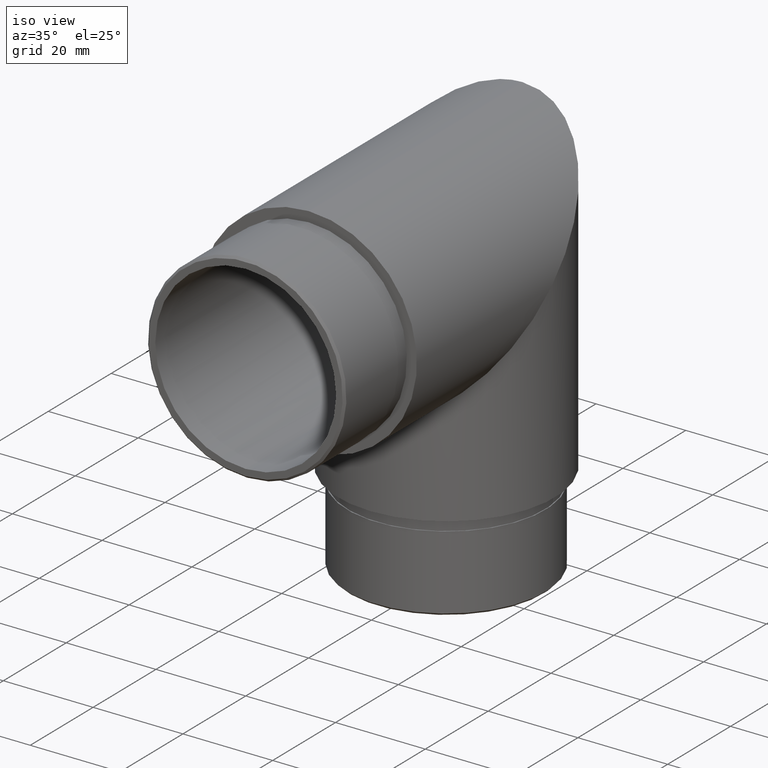
[diagram: clean part render]
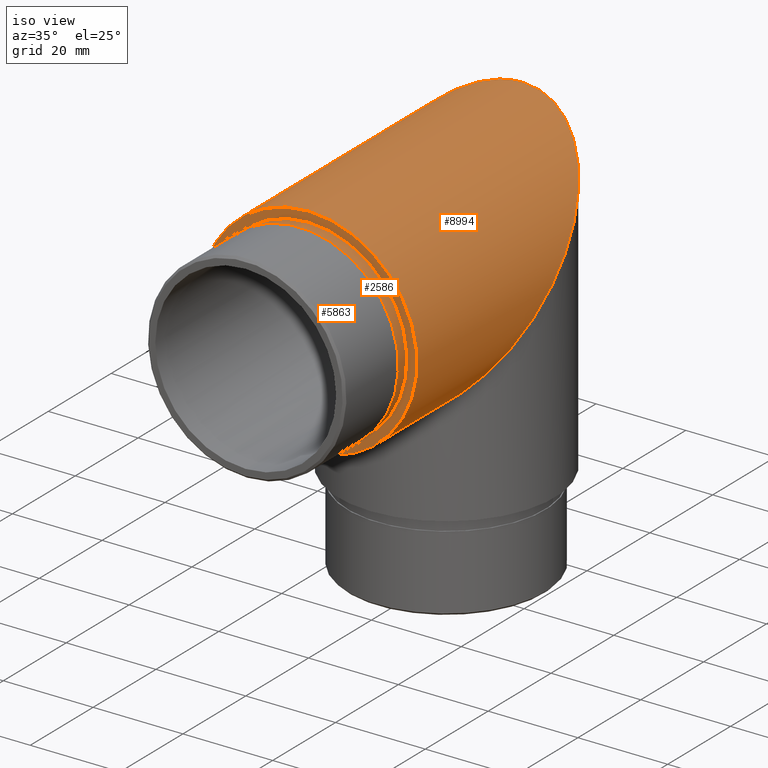
[diagram: same view with one multi-face feature highlighted, each face labeled with its STEP entity id]
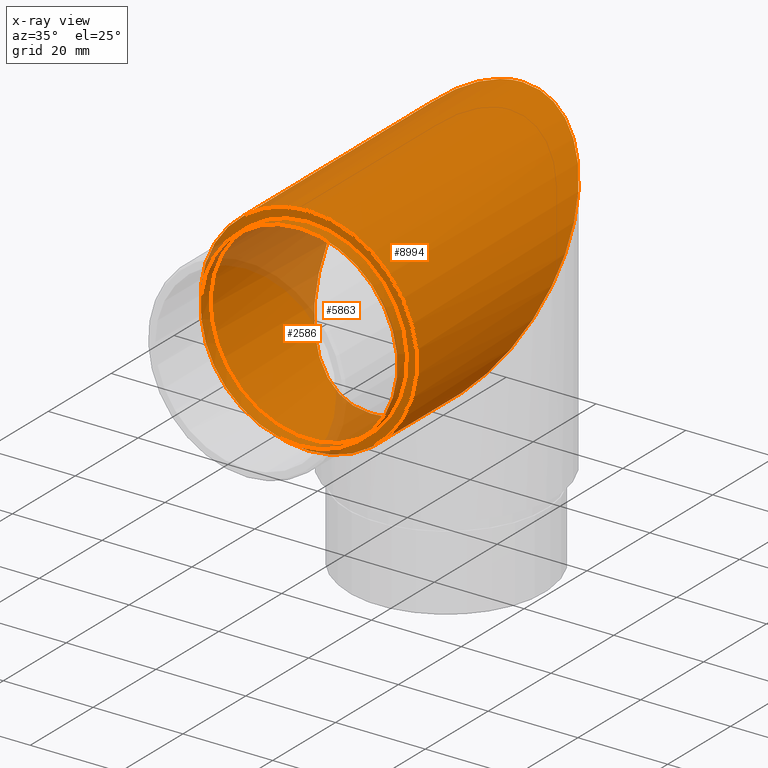
[diagram: x-ray of the same camera — body ghosted, the whole feature saturated]
A machine part, iso view. The highlighted faces form ONE feature: a stepped (counterbored) hole: 2 coaxial cylindrical walls of radii 21.9 -> 24.15 mm joined by 1 annular planar shoulder face(s). The faces share edges in the B-rep.
The next image is the same camera in x-ray: the body ghosted and the whole hole feature saturated, so the bore chain is visible through the body.
Their STEP definitions:
[1] entity #8994 (Cylinder):
#198 = CARTESIAN_POINT ( 'NONE',  ( 0.0000000000000000000, 19.69999999999990700, -24.15000000000000600 ) ) ;
#347 = CARTESIAN_POINT ( 'NONE',  ( 48.30000000000001100, 19.69999999999990700, -24.15000000000000900 ) ) ;
#1121 = CARTESIAN_POINT ( 'NONE',  ( 0.0000000000000000000, 19.69999999999990700, -24.15000000000000600 ) ) ;
#1145 = EDGE_LOOP ( 'NONE', ( #7351 ) ) ;
#1294 = DIRECTION ( 'NONE',  ( 0.0000000000000000000, 0.0000000000000000000, -1.000000000000000000 ) ) ;
#1626 = ORIENTED_EDGE ( 'NONE', *, *, #4614, .T. ) ;
#2707 = AXIS2_PLACEMENT_3D ( 'NONE', #3145, #9163, #10873 ) ;
#2925 = CARTESIAN_POINT ( 'NONE',  ( -2.957522019940858700E-015, 68.00000000000008500, 24.15000000000000600 ) ) ;
#3145 = CARTESIAN_POINT ( 'NONE',  ( 0.0000000000000000000, 0.0000000000000000000, 0.0000000000000000000 ) ) ;
#3412 = VERTEX_POINT ( 'NONE', #6307 ) ;
#4368 = FACE_OUTER_BOUND ( 'NONE', #10278, .T. ) ;
#4411 = EDGE_CURVE ( 'NONE', #10031, #10031, #8249, .T. ) ;
#4562 = CARTESIAN_POINT ( 'NONE',  ( -48.30000000000001100, 68.00000000000008500, 24.14999999999999900 ) ) ;
#4614 = EDGE_CURVE ( 'NONE', #3412, #3412, #7533, .T. ) ;
#5316 = CARTESIAN_POINT ( 'NONE',  ( 48.30000000000001100, 68.00000000000008500, 24.15000000000001600 ) ) ;
#5393 = CARTESIAN_POINT ( 'NONE',  ( 0.0000000000000000000, 19.69999999999990700, -24.15000000000000600 ) ) ;
#5468 = CARTESIAN_POINT ( 'NONE',  ( -48.30000000000001100, 19.69999999999990700, -24.15000000000000900 ) ) ;
#6280 = CYLINDRICAL_SURFACE ( 'NONE', #6342, 24.15000000000000600 ) ;
#6307 = CARTESIAN_POINT ( 'NONE',  ( 0.0000000000000000000, 0.0000000000000000000, 24.15000000000000600 ) ) ;
#6342 = AXIS2_PLACEMENT_3D ( 'NONE', #7401, #9139, #1294 ) ;
#7328 = FACE_OUTER_BOUND ( 'NONE', #1145, .T. ) ;
#7351 = ORIENTED_EDGE ( 'NONE', *, *, #4411, .F. ) ;
#7401 = CARTESIAN_POINT ( 'NONE',  ( 0.0000000000000000000, 112.1565150626205000, 0.0000000000000000000 ) ) ;
#7533 = CIRCLE ( 'NONE', #2707, 24.15000000000000600 ) ;
#8249 =( BOUNDED_CURVE ( )  B_SPLINE_CURVE ( 3, ( #5393, #5468, #4562, #2925, #5316, #347, #198 ),
 .UNSPECIFIED., .T., .T. ) 
 B_SPLINE_CURVE_WITH_KNOTS ( ( 4, 3, 4 ),
 ( 0.0000000000000000000, 3.141592653589793100, 6.283185307179586200 ),
 .UNSPECIFIED. ) 
 CURVE ( )  GEOMETRIC_REPRESENTATION_ITEM ( )  RATIONAL_B_SPLINE_CURVE ( ( 1.000000000000000000, 0.3333333333333333700, 0.3333333333333333700, 1.000000000000000000, 0.3333333333333333700, 0.3333333333333333700, 1.000000000000000000 ) ) 
 REPRESENTATION_ITEM ( '' )  );
#8994 = ADVANCED_FACE ( 'NONE', ( #4368, #7328 ), #6280, .T. ) ;
#9139 = DIRECTION ( 'NONE',  ( -0.0000000000000000000, -1.000000000000000000, -0.0000000000000000000 ) ) ;
#9163 = DIRECTION ( 'NONE',  ( 0.0000000000000000000, 1.000000000000000000, 0.0000000000000000000 ) ) ;
#10031 = VERTEX_POINT ( 'NONE', #1121 ) ;
#10278 = EDGE_LOOP ( 'NONE', ( #1626 ) ) ;
#10873 = DIRECTION ( 'NONE',  ( 0.0000000000000000000, 0.0000000000000000000, 1.000000000000000000 ) ) ;
[2] entity #2586 (Cylinder):
#311 = CIRCLE ( 'NONE', #5201, 21.90000000000000600 ) ;
#344 = VERTEX_POINT ( 'NONE', #1083 ) ;
#932 = AXIS2_PLACEMENT_3D ( 'NONE', #9952, #8192, #6566 ) ;
#1083 = CARTESIAN_POINT ( 'NONE',  ( 0.0000000000000000000, 0.0000000000000000000, 21.90000000000000600 ) ) ;
#1528 = CARTESIAN_POINT ( 'NONE',  ( 0.0000000000000000000, -3.000000000000000000, 0.0000000000000000000 ) ) ;
#2267 = DIRECTION ( 'NONE',  ( 0.0000000000000000000, 0.0000000000000000000, 1.000000000000000000 ) ) ;
#2586 = ADVANCED_FACE ( 'NONE', ( #3246, #8066 ), #2722, .T. ) ;
#2722 = CYLINDRICAL_SURFACE ( 'NONE', #9333, 21.90000000000000600 ) ;
#2933 = EDGE_CURVE ( 'NONE', #6673, #6673, #311, .T. ) ;
#3246 = FACE_OUTER_BOUND ( 'NONE', #8036, .T. ) ;
#3608 = ORIENTED_EDGE ( 'NONE', *, *, #2933, .F. ) ;
#4974 = EDGE_CURVE ( 'NONE', #344, #344, #10368, .T. ) ;
#5201 = AXIS2_PLACEMENT_3D ( 'NONE', #9705, #7200, #10620 ) ;
#5453 = CARTESIAN_POINT ( 'NONE',  ( 0.0000000000000000000, -3.000000000000000000, -21.90000000000000600 ) ) ;
#6566 = DIRECTION ( 'NONE',  ( 0.0000000000000000000, 0.0000000000000000000, 1.000000000000000000 ) ) ;
#6673 = VERTEX_POINT ( 'NONE', #5453 ) ;
#6677 = DIRECTION ( 'NONE',  ( -0.0000000000000000000, 1.000000000000000000, -0.0000000000000000000 ) ) ;
#6728 = EDGE_LOOP ( 'NONE', ( #8093 ) ) ;
#7200 = DIRECTION ( 'NONE',  ( 0.0000000000000000000, -1.000000000000000000, 0.0000000000000000000 ) ) ;
#8036 = EDGE_LOOP ( 'NONE', ( #3608 ) ) ;
#8066 = FACE_OUTER_BOUND ( 'NONE', #6728, .T. ) ;
#8093 = ORIENTED_EDGE ( 'NONE', *, *, #4974, .T. ) ;
#8192 = DIRECTION ( 'NONE',  ( -0.0000000000000000000, -1.000000000000000000, -0.0000000000000000000 ) ) ;
#9333 = AXIS2_PLACEMENT_3D ( 'NONE', #1528, #6677, #2267 ) ;
#9705 = CARTESIAN_POINT ( 'NONE',  ( 0.0000000000000000000, -3.000000000000000000, 0.0000000000000000000 ) ) ;
#9952 = CARTESIAN_POINT ( 'NONE',  ( 0.0000000000000000000, 0.0000000000000000000, 0.0000000000000000000 ) ) ;
#10368 = CIRCLE ( 'NONE', #932, 21.90000000000000600 ) ;
#10620 = DIRECTION ( 'NONE',  ( 0.0000000000000000000, 0.0000000000000000000, -1.000000000000000000 ) ) ;
[3] entity #5863 (Plane):
#344 = VERTEX_POINT ( 'NONE', #1083 ) ;
#932 = AXIS2_PLACEMENT_3D ( 'NONE', #9952, #8192, #6566 ) ;
#1083 = CARTESIAN_POINT ( 'NONE',  ( 0.0000000000000000000, 0.0000000000000000000, 21.90000000000000600 ) ) ;
#1206 = CARTESIAN_POINT ( 'NONE',  ( 0.0000000000000000000, 0.0000000000000000000, 0.0000000000000000000 ) ) ;
#2707 = AXIS2_PLACEMENT_3D ( 'NONE', #3145, #9163, #10873 ) ;
#2874 = ORIENTED_EDGE ( 'NONE', *, *, #4974, .F. ) ;
#3145 = CARTESIAN_POINT ( 'NONE',  ( 0.0000000000000000000, 0.0000000000000000000, 0.0000000000000000000 ) ) ;
#3412 = VERTEX_POINT ( 'NONE', #6307 ) ;
#3776 = DIRECTION ( 'NONE',  ( 0.0000000000000000000, -0.0000000000000000000, 1.000000000000000000 ) ) ;
#3817 = DIRECTION ( 'NONE',  ( 0.0000000000000000000, 1.000000000000000000, 0.0000000000000000000 ) ) ;
#3848 = PLANE ( 'NONE',  #10292 ) ;
#4614 = EDGE_CURVE ( 'NONE', #3412, #3412, #7533, .T. ) ;
#4651 = ORIENTED_EDGE ( 'NONE', *, *, #4614, .F. ) ;
#4974 = EDGE_CURVE ( 'NONE', #344, #344, #10368, .T. ) ;
#5863 = ADVANCED_FACE ( 'NONE', ( #8182, #9681 ), #3848, .F. ) ;
#6034 = EDGE_LOOP ( 'NONE', ( #4651 ) ) ;
#6307 = CARTESIAN_POINT ( 'NONE',  ( 0.0000000000000000000, 0.0000000000000000000, 24.15000000000000600 ) ) ;
#6566 = DIRECTION ( 'NONE',  ( 0.0000000000000000000, 0.0000000000000000000, 1.000000000000000000 ) ) ;
#7412 = EDGE_LOOP ( 'NONE', ( #2874 ) ) ;
#7533 = CIRCLE ( 'NONE', #2707, 24.15000000000000600 ) ;
#8182 = FACE_OUTER_BOUND ( 'NONE', #6034, .T. ) ;
#8192 = DIRECTION ( 'NONE',  ( -0.0000000000000000000, -1.000000000000000000, -0.0000000000000000000 ) ) ;
#9163 = DIRECTION ( 'NONE',  ( 0.0000000000000000000, 1.000000000000000000, 0.0000000000000000000 ) ) ;
#9681 = FACE_BOUND ( 'NONE', #7412, .T. ) ;
#9952 = CARTESIAN_POINT ( 'NONE',  ( 0.0000000000000000000, 0.0000000000000000000, 0.0000000000000000000 ) ) ;
#10292 = AXIS2_PLACEMENT_3D ( 'NONE', #1206, #3817, #3776 ) ;
#10368 = CIRCLE ( 'NONE', #932, 21.90000000000000600 ) ;
#10873 = DIRECTION ( 'NONE',  ( 0.0000000000000000000, 0.0000000000000000000, 1.000000000000000000 ) ) ;